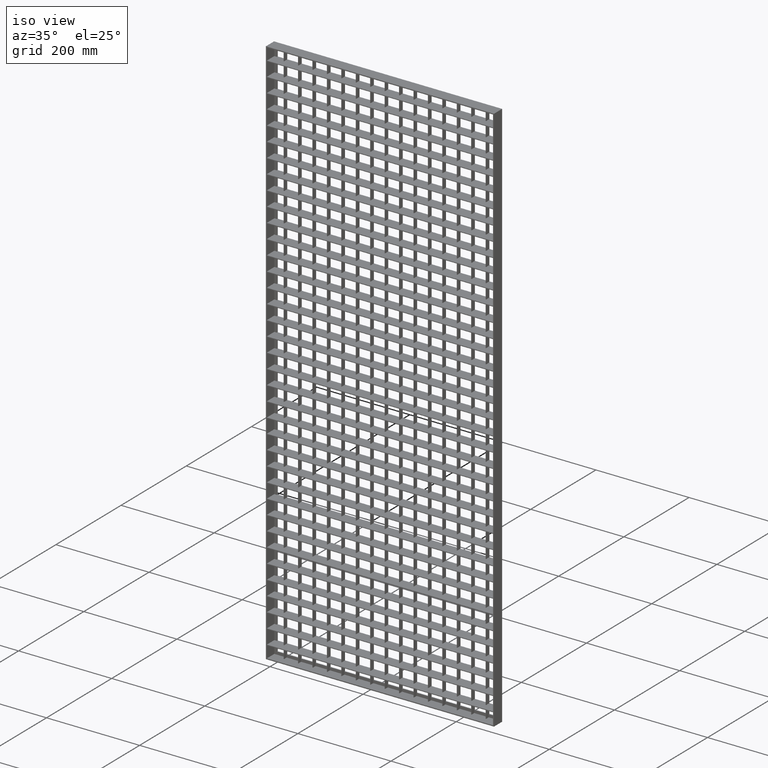
[diagram: clean part render]
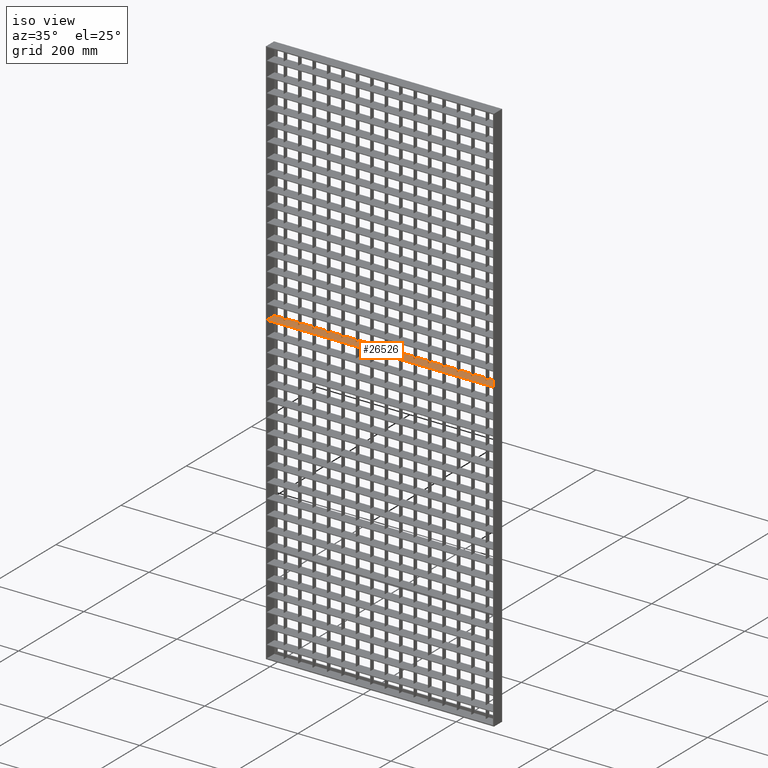
[diagram: same view with one face highlighted and labeled with its STEP entity id]
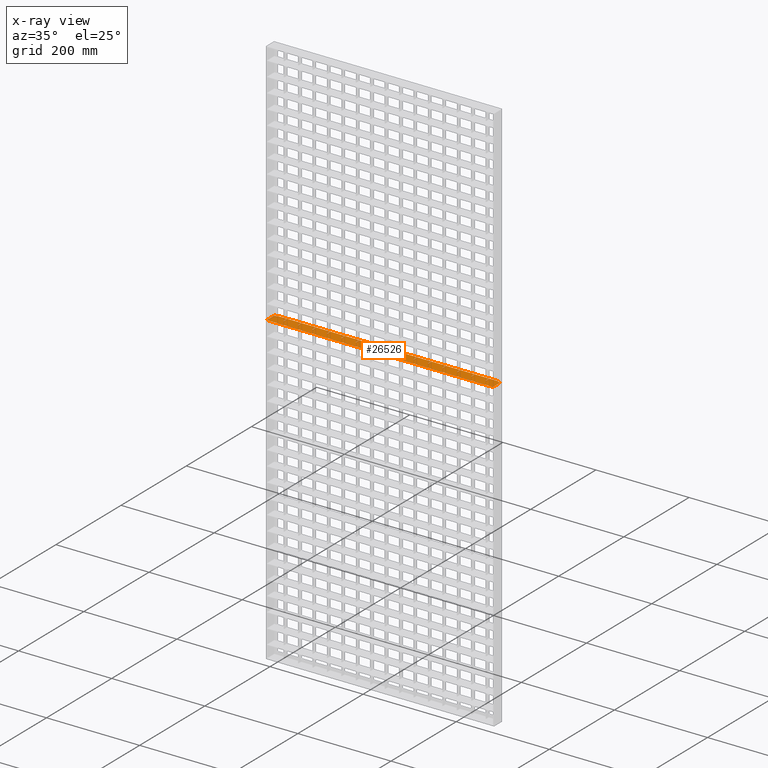
[diagram: x-ray of the same camera — body ghosted, the highlighted face saturated]
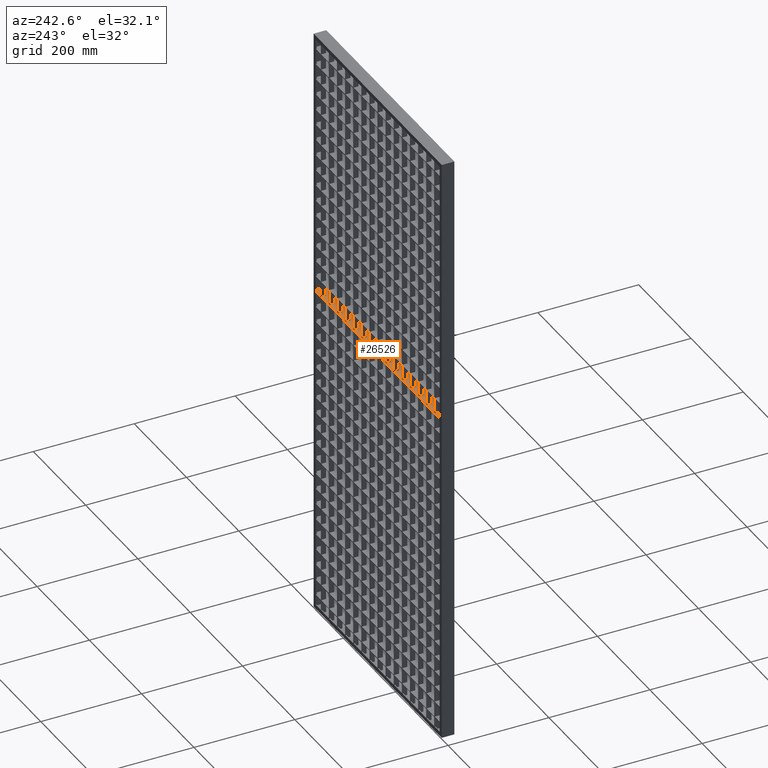
[diagram: same view with one face highlighted and labeled with its STEP entity id]
A machine part, iso view. The second image highlights one B-rep face of the part: STEP entity #26526.
The next image is the same camera in x-ray: the body ghosted, the highlighted face saturated — about 0% of this face is hidden behind the body in this view.
A second angle (auxiliary view) of the same face is appended — the face is thin or edge-on in the first view.
In plain terms, the highlighted planar face has unit normal (0, 0, 1).
Its self-contained STEP definition (entity closure, byte-faithful):
#17 = CARTESIAN_POINT ( 'NONE',  ( 244.5000000000000000, -12.49999999999984900, -531.2500000000002300 ) ) ;
#559 = ORIENTED_EDGE ( 'NONE', *, *, #63513, .T. ) ;
#852 = VERTEX_POINT ( 'NONE', #45681 ) ;
#919 = ORIENTED_EDGE ( 'NONE', *, *, #16611, .F. ) ;
#1181 = VECTOR ( 'NONE', #8940, 1000.000000000000000 ) ;
#1232 = VERTEX_POINT ( 'NONE', #42777 ) ;
#1347 = CARTESIAN_POINT ( 'NONE',  ( 90.50000000000002800, 2.500000000000000400, -531.2500000000002300 ) ) ;
#1612 = ORIENTED_EDGE ( 'NONE', *, *, #34572, .T. ) ;
#2037 = VERTEX_POINT ( 'NONE', #48611 ) ;
#2794 = CARTESIAN_POINT ( 'NONE',  ( 90.50000000000002800, -12.49999999999984900, -531.2500000000002300 ) ) ;
#2925 = VERTEX_POINT ( 'NONE', #67399 ) ;
#3530 = DIRECTION ( 'NONE',  ( -1.000000000000000000, -3.061616997868382200E-016, 0.0000000000000000000 ) ) ;
#3730 = VERTEX_POINT ( 'NONE', #35892 ) ;
#3938 = CARTESIAN_POINT ( 'NONE',  ( 482.0000000000002300, 12.50000000000000500, -531.2500000000002300 ) ) ;
#3950 = EDGE_CURVE ( 'NONE', #68654, #17824, #8129, .T. ) ;
#4154 = DIRECTION ( 'NONE',  ( -1.000000000000000000, 0.0000000000000000000, 0.0000000000000000000 ) ) ;
#4192 = CARTESIAN_POINT ( 'NONE',  ( 513.0449595727365000, 2.499999999999924100, -531.2500000000002300 ) ) ;
#4373 = EDGE_CURVE ( 'NONE', #21585, #8139, #80873, .T. ) ;
#4433 = LINE ( 'NONE', #71108, #7439 ) ;
#4519 = EDGE_CURVE ( 'NONE', #3730, #83474, #12798, .T. ) ;
#4557 = DIRECTION ( 'NONE',  ( -0.0000000000000000000, 1.000000000000000000, 0.0000000000000000000 ) ) ;
#4828 = CARTESIAN_POINT ( 'NONE',  ( 245.5000000000000000, 2.500000000000000400, -531.2500000000002300 ) ) ;
#4869 = EDGE_CURVE ( 'NONE', #28859, #1232, #47296, .T. ) ;
#5305 = VERTEX_POINT ( 'NONE', #33152 ) ;
#5413 = ORIENTED_EDGE ( 'NONE', *, *, #7295, .F. ) ;
#5796 = DIRECTION ( 'NONE',  ( -1.000000000000000000, 4.336808689942013800E-016, 0.0000000000000000000 ) ) ;
#5978 = LINE ( 'NONE', #73428, #20192 ) ;
#6105 = VECTOR ( 'NONE', #52221, 1000.000000000000000 ) ;
#6404 = DIRECTION ( 'NONE',  ( -1.000000000000000000, -3.061616997868382200E-016, 0.0000000000000000000 ) ) ;
#6513 = DIRECTION ( 'NONE',  ( 0.0000000000000000000, -1.000000000000000000, 0.0000000000000000000 ) ) ;
#6538 = CARTESIAN_POINT ( 'NONE',  ( 306.5000000000000000, 12.50000000000008900, -531.2500000000002300 ) ) ;
#6595 = EDGE_CURVE ( 'NONE', #58359, #56359, #74289, .T. ) ;
#6627 = VECTOR ( 'NONE', #3530, 1000.000000000000000 ) ;
#6730 = EDGE_CURVE ( 'NONE', #25553, #68654, #21547, .T. ) ;
#6926 = EDGE_CURVE ( 'NONE', #32621, #47350, #64201, .T. ) ;
#6965 = CARTESIAN_POINT ( 'NONE',  ( 121.5000000000000000, 12.50000000000003200, -531.2500000000002300 ) ) ;
#7295 = EDGE_CURVE ( 'NONE', #56359, #55517, #37768, .T. ) ;
#7439 = VECTOR ( 'NONE', #77902, 1000.000000000000000 ) ;
#7558 = CARTESIAN_POINT ( 'NONE',  ( 89.50000000000000000, 12.50000000000000000, -531.2500000000002300 ) ) ;
#7821 = LINE ( 'NONE', #67017, #20089 ) ;
#7890 = ORIENTED_EDGE ( 'NONE', *, *, #67189, .T. ) ;
#8035 = CARTESIAN_POINT ( 'NONE',  ( 7.999999999999994700, 12.50000000000000500, -531.2500000000002300 ) ) ;
#8129 = LINE ( 'NONE', #84101, #70115 ) ;
#8139 = VERTEX_POINT ( 'NONE', #43971 ) ;
#8196 = DIRECTION ( 'NONE',  ( -1.000000000000000000, -3.061616997868382200E-016, 0.0000000000000000000 ) ) ;
#8248 = CARTESIAN_POINT ( 'NONE',  ( 27.49999999999999600, 12.50000000000000000, -531.2500000000002300 ) ) ;
#8786 = ORIENTED_EDGE ( 'NONE', *, *, #6730, .T. ) ;
#8803 = CARTESIAN_POINT ( 'NONE',  ( 28.49999999999997200, -12.49999999999984900, -531.2500000000002300 ) ) ;
#8940 = DIRECTION ( 'NONE',  ( 1.000000000000000000, 4.336808689942013800E-016, -0.0000000000000000000 ) ) ;
#10178 = EDGE_CURVE ( 'NONE', #27710, #852, #27122, .T. ) ;
#10545 = VERTEX_POINT ( 'NONE', #70067 ) ;
#11007 = LINE ( 'NONE', #51637, #28438 ) ;
#11179 = EDGE_CURVE ( 'NONE', #55120, #3730, #50282, .T. ) ;
#11240 = VECTOR ( 'NONE', #21100, 1000.000000000000000 ) ;
#11317 = VECTOR ( 'NONE', #81990, 1000.000000000000000 ) ;
#11546 = DIRECTION ( 'NONE',  ( -1.000000000000000000, -3.061616997868382200E-016, 0.0000000000000000000 ) ) ;
#11763 = ORIENTED_EDGE ( 'NONE', *, *, #19971, .T. ) ;
#11916 = DIRECTION ( 'NONE',  ( -0.0000000000000000000, 1.000000000000000000, 0.0000000000000000000 ) ) ;
#12224 = DIRECTION ( 'NONE',  ( -0.0000000000000000000, 1.000000000000000000, 0.0000000000000000000 ) ) ;
#12508 = CARTESIAN_POINT ( 'NONE',  ( 59.50000000000000000, -12.49999999999984900, -531.2500000000002300 ) ) ;
#12632 = LINE ( 'NONE', #56739, #66483 ) ;
#12794 = VERTEX_POINT ( 'NONE', #53026 ) ;
#12798 = LINE ( 'NONE', #62057, #79820 ) ;
#12945 = EDGE_CURVE ( 'NONE', #21990, #41731, #22639, .T. ) ;
#13200 = ORIENTED_EDGE ( 'NONE', *, *, #12945, .T. ) ;
#13367 = ORIENTED_EDGE ( 'NONE', *, *, #15953, .T. ) ;
#13791 = VERTEX_POINT ( 'NONE', #48385 ) ;
#14016 = ORIENTED_EDGE ( 'NONE', *, *, #19840, .F. ) ;
#14093 = VECTOR ( 'NONE', #45635, 1000.000000000000000 ) ;
#14132 = DIRECTION ( 'NONE',  ( 0.0000000000000000000, -1.000000000000000000, 0.0000000000000000000 ) ) ;
#14478 = CARTESIAN_POINT ( 'NONE',  ( 275.5000000000000600, -12.49999999999984900, -531.2500000000002300 ) ) ;
#14565 = ORIENTED_EDGE ( 'NONE', *, *, #30578, .T. ) ;
#14609 = ORIENTED_EDGE ( 'NONE', *, *, #71657, .T. ) ;
#14885 = DIRECTION ( 'NONE',  ( 1.000000000000000000, 0.0000000000000000000, -0.0000000000000000000 ) ) ;
#14975 = EDGE_CURVE ( 'NONE', #21990, #21983, #60687, .T. ) ;
#15213 = LINE ( 'NONE', #15597, #33453 ) ;
#15276 = ORIENTED_EDGE ( 'NONE', *, *, #3950, .T. ) ;
#15446 = VECTOR ( 'NONE', #40828, 1000.000000000000000 ) ;
#15469 = VERTEX_POINT ( 'NONE', #16781 ) ;
#15489 = CARTESIAN_POINT ( 'NONE',  ( 488.0000000000001100, -12.50000000000000700, -531.2500000000002300 ) ) ;
#15597 = CARTESIAN_POINT ( 'NONE',  ( 513.0449595727365000, 12.50000000000015100, -531.2500000000002300 ) ) ;
#15863 = ORIENTED_EDGE ( 'NONE', *, *, #36326, .T. ) ;
#15901 = CARTESIAN_POINT ( 'NONE',  ( 482.0000000000001700, 10.50000000000036400, -531.2500000000002300 ) ) ;
#15928 = EDGE_CURVE ( 'NONE', #21983, #24872, #29488, .T. ) ;
#15953 = EDGE_CURVE ( 'NONE', #48015, #55120, #16308, .T. ) ;
#16012 = VECTOR ( 'NONE', #82881, 1000.000000000000000 ) ;
#16089 = CARTESIAN_POINT ( 'NONE',  ( 513.0449595727365000, 12.50000000000015100, -531.2500000000002300 ) ) ;
#16154 = CARTESIAN_POINT ( 'NONE',  ( 513.0449595727365000, 2.500000000000116800, -531.2500000000002300 ) ) ;
#16308 = LINE ( 'NONE', #41159, #75169 ) ;
#16611 = EDGE_CURVE ( 'NONE', #32721, #71116, #19269, .T. ) ;
#16678 = VECTOR ( 'NONE', #11546, 1000.000000000000000 ) ;
#16781 = CARTESIAN_POINT ( 'NONE',  ( 430.5000000000001100, 2.500000000000000900, -531.2500000000002300 ) ) ;
#17011 = ORIENTED_EDGE ( 'NONE', *, *, #76286, .T. ) ;
#17328 = AXIS2_PLACEMENT_3D ( 'NONE', #27691, #73075, #14885 ) ;
#17404 = VECTOR ( 'NONE', #70437, 1000.000000000000000 ) ;
#17552 = EDGE_CURVE ( 'NONE', #17824, #30678, #82034, .T. ) ;
#17672 = ORIENTED_EDGE ( 'NONE', *, *, #45824, .F. ) ;
#17824 = VERTEX_POINT ( 'NONE', #46170 ) ;
#17934 = LINE ( 'NONE', #56785, #19991 ) ;
#18040 = VECTOR ( 'NONE', #4557, 1000.000000000000000 ) ;
#18712 = LINE ( 'NONE', #43662, #16678 ) ;
#18740 = VERTEX_POINT ( 'NONE', #70092 ) ;
#18788 = CARTESIAN_POINT ( 'NONE',  ( 431.5000000000001100, 12.50000000000000000, -531.2500000000002300 ) ) ;
#19127 = CARTESIAN_POINT ( 'NONE',  ( 368.5000000000000600, 2.500000000000000900, -531.2500000000002300 ) ) ;
#19269 = LINE ( 'NONE', #64872, #23348 ) ;
#19352 = DIRECTION ( 'NONE',  ( -0.0000000000000000000, 1.000000000000000000, 0.0000000000000000000 ) ) ;
#19393 = ORIENTED_EDGE ( 'NONE', *, *, #77832, .F. ) ;
#19423 = CARTESIAN_POINT ( 'NONE',  ( 513.0449595727365000, 12.50000000000015100, -531.2500000000002300 ) ) ;
#19469 = LINE ( 'NONE', #54099, #1181 ) ;
#19782 = VECTOR ( 'NONE', #25803, 1000.000000000000000 ) ;
#19840 = EDGE_CURVE ( 'NONE', #55517, #852, #58258, .T. ) ;
#19957 = DIRECTION ( 'NONE',  ( 1.000000000000000000, 4.336808689942013800E-016, -0.0000000000000000000 ) ) ;
#19971 = EDGE_CURVE ( 'NONE', #30678, #23614, #83581, .T. ) ;
#19991 = VECTOR ( 'NONE', #31827, 1000.000000000000000 ) ;
#20089 = VECTOR ( 'NONE', #79516, 1000.000000000000000 ) ;
#20192 = VECTOR ( 'NONE', #61698, 1000.000000000000000 ) ;
#20293 = VECTOR ( 'NONE', #43402, 1000.000000000000000 ) ;
#20305 = ORIENTED_EDGE ( 'NONE', *, *, #23567, .F. ) ;
#20550 = VERTEX_POINT ( 'NONE', #50735 ) ;
#20802 = CARTESIAN_POINT ( 'NONE',  ( 337.5000000000000000, -12.49999999999984900, -531.2500000000002300 ) ) ;
#21020 = ORIENTED_EDGE ( 'NONE', *, *, #34104, .T. ) ;
#21044 = CARTESIAN_POINT ( 'NONE',  ( 58.50000000000000000, -12.49999999999984900, -531.2500000000002300 ) ) ;
#21100 = DIRECTION ( 'NONE',  ( 0.0000000000000000000, -1.000000000000000000, 0.0000000000000000000 ) ) ;
#21398 = ORIENTED_EDGE ( 'NONE', *, *, #14975, .F. ) ;
#21547 = LINE ( 'NONE', #15901, #11317 ) ;
#21585 = VERTEX_POINT ( 'NONE', #70326 ) ;
#21801 = EDGE_CURVE ( 'NONE', #81475, #53128, #64379, .T. ) ;
#21983 = VERTEX_POINT ( 'NONE', #22623 ) ;
#21990 = VERTEX_POINT ( 'NONE', #67985 ) ;
#21995 = ORIENTED_EDGE ( 'NONE', *, *, #4519, .T. ) ;
#22163 = EDGE_CURVE ( 'NONE', #83878, #5305, #30817, .T. ) ;
#22542 = ORIENTED_EDGE ( 'NONE', *, *, #40604, .F. ) ;
#22623 = CARTESIAN_POINT ( 'NONE',  ( 151.4999999999999700, 2.499999999999999600, -531.2500000000002300 ) ) ;
#22626 = ORIENTED_EDGE ( 'NONE', *, *, #66782, .F. ) ;
#22639 = LINE ( 'NONE', #16089, #53086 ) ;
#22795 = VECTOR ( 'NONE', #36539, 1000.000000000000000 ) ;
#23348 = VECTOR ( 'NONE', #71426, 1000.000000000000000 ) ;
#23364 = LINE ( 'NONE', #20802, #74071 ) ;
#23383 = VECTOR ( 'NONE', #8196, 1000.000000000000000 ) ;
#23567 = EDGE_CURVE ( 'NONE', #72979, #52291, #47796, .T. ) ;
#23607 = VECTOR ( 'NONE', #49642, 1000.000000000000000 ) ;
#23614 = VERTEX_POINT ( 'NONE', #32705 ) ;
#23872 = EDGE_CURVE ( 'NONE', #8139, #56654, #35561, .T. ) ;
#24226 = VECTOR ( 'NONE', #19352, 1000.000000000000000 ) ;
#24248 = VERTEX_POINT ( 'NONE', #52911 ) ;
#24436 = VECTOR ( 'NONE', #26189, 1000.000000000000000 ) ;
#24726 = VECTOR ( 'NONE', #12224, 1000.000000000000000 ) ;
#24851 = VECTOR ( 'NONE', #41116, 1000.000000000000000 ) ;
#24872 = VERTEX_POINT ( 'NONE', #40089 ) ;
#25437 = LINE ( 'NONE', #39220, #23383 ) ;
#25504 = LINE ( 'NONE', #35752, #75203 ) ;
#25509 = ORIENTED_EDGE ( 'NONE', *, *, #30991, .T. ) ;
#25553 = VERTEX_POINT ( 'NONE', #38291 ) ;
#25712 = LINE ( 'NONE', #63280, #56128 ) ;
#25723 = LINE ( 'NONE', #82875, #65244 ) ;
#25803 = DIRECTION ( 'NONE',  ( 0.0000000000000000000, -1.000000000000000000, 0.0000000000000000000 ) ) ;
#25852 = DIRECTION ( 'NONE',  ( -1.000000000000000000, -3.061616997868382200E-016, 0.0000000000000000000 ) ) ;
#26154 = CARTESIAN_POINT ( 'NONE',  ( 120.5000000000000000, 2.500000000000000000, -531.2500000000002300 ) ) ;
#26189 = DIRECTION ( 'NONE',  ( 0.0000000000000000000, -1.000000000000000000, 0.0000000000000000000 ) ) ;
#26259 = CARTESIAN_POINT ( 'NONE',  ( 513.0449595727365000, 12.50000000000015100, -531.2500000000002300 ) ) ;
#26341 = CARTESIAN_POINT ( 'NONE',  ( 513.0449595727365000, 12.50000000000015100, -531.2500000000002300 ) ) ;
#26361 = ORIENTED_EDGE ( 'NONE', *, *, #36196, .T. ) ;
#26494 = CARTESIAN_POINT ( 'NONE',  ( 513.0449595727365000, 2.500000000000170500, -531.2500000000002300 ) ) ;
#26513 = ORIENTED_EDGE ( 'NONE', *, *, #4373, .T. ) ;
#26526 = ADVANCED_FACE ( 'NONE', ( #30831 ), #28241, .T. ) ;
#26799 = DIRECTION ( 'NONE',  ( -0.0000000000000000000, 1.000000000000000000, 0.0000000000000000000 ) ) ;
#27122 = LINE ( 'NONE', #19423, #61560 ) ;
#27366 = CARTESIAN_POINT ( 'NONE',  ( 89.50000000000002800, -12.49999999999984900, -531.2500000000002300 ) ) ;
#27691 = CARTESIAN_POINT ( 'NONE',  ( 513.0449595727365000, -12.49999999999984900, -531.2500000000002300 ) ) ;
#27710 = VERTEX_POINT ( 'NONE', #7558 ) ;
#27762 = EDGE_CURVE ( 'NONE', #57941, #81475, #64248, .T. ) ;
#27951 = LINE ( 'NONE', #45646, #19782 ) ;
#28043 = DIRECTION ( 'NONE',  ( -1.000000000000000000, -3.061616997868382200E-016, 0.0000000000000000000 ) ) ;
#28099 = DIRECTION ( 'NONE',  ( -8.673617379884035500E-016, -1.000000000000000000, 0.0000000000000000000 ) ) ;
#28241 = PLANE ( 'NONE',  #17328 ) ;
#28263 = LINE ( 'NONE', #58470, #57616 ) ;
#28359 = ORIENTED_EDGE ( 'NONE', *, *, #63151, .T. ) ;
#28438 = VECTOR ( 'NONE', #25852, 1000.000000000000000 ) ;
#28594 = ORIENTED_EDGE ( 'NONE', *, *, #15928, .F. ) ;
#28694 = CARTESIAN_POINT ( 'NONE',  ( 513.0449595727365000, 12.50000000000015100, -531.2500000000002300 ) ) ;
#28859 = VERTEX_POINT ( 'NONE', #82130 ) ;
#28905 = LINE ( 'NONE', #49310, #22795 ) ;
#29488 = LINE ( 'NONE', #40054, #6105 ) ;
#30008 = DIRECTION ( 'NONE',  ( -1.000000000000000000, 4.336808689942013800E-016, 0.0000000000000000000 ) ) ;
#30449 = VECTOR ( 'NONE', #31212, 1000.000000000000000 ) ;
#30578 = EDGE_CURVE ( 'NONE', #2037, #15469, #17934, .T. ) ;
#30593 = EDGE_CURVE ( 'NONE', #58951, #41731, #78803, .T. ) ;
#30678 = VERTEX_POINT ( 'NONE', #45739 ) ;
#30711 = ORIENTED_EDGE ( 'NONE', *, *, #44966, .F. ) ;
#30817 = LINE ( 'NONE', #50950, #37952 ) ;
#30831 = FACE_OUTER_BOUND ( 'NONE', #32260, .T. ) ;
#30991 = EDGE_CURVE ( 'NONE', #72979, #50753, #18712, .T. ) ;
#31212 = DIRECTION ( 'NONE',  ( 1.000000000000000000, 4.336808689942013800E-016, -0.0000000000000000000 ) ) ;
#31355 = LINE ( 'NONE', #65746, #14093 ) ;
#31604 = CARTESIAN_POINT ( 'NONE',  ( 58.49999999999994300, 2.499999999999999100, -531.2500000000002300 ) ) ;
#31827 = DIRECTION ( 'NONE',  ( -1.000000000000000000, 4.336808689942013800E-016, 0.0000000000000000000 ) ) ;
#31969 = CARTESIAN_POINT ( 'NONE',  ( 89.49999999999997200, 2.500000000000000400, -531.2500000000002300 ) ) ;
#32260 = EDGE_LOOP ( 'NONE', ( #15276, #59120, #11763, #45192, #56227, #21020, #14565, #56655, #26361, #28359, #68705, #80514, #41710, #67503, #50808, #77247, #17011, #57095, #44488, #43430, #42456, #7890, #15863, #559, #79391, #67338, #34106, #26513, #80723, #49895, #45200, #20305, #25509, #22542, #54948, #70255, #1612, #62187, #30711, #80187, #66073, #17672, #28594, #21398, #13200, #76352, #19393, #72598, #49957, #22626, #80289, #48728, #40156, #14016, #5413, #82104, #70359, #51029, #72747, #45619, #65869, #13367, #63148, #21995, #35299, #919, #14609, #8786 ) ) ;
#32429 = VECTOR ( 'NONE', #70585, 1000.000000000000000 ) ;
#32621 = VERTEX_POINT ( 'NONE', #31969 ) ;
#32705 = CARTESIAN_POINT ( 'NONE',  ( 461.5000000000000000, 2.500000000000000900, -531.2500000000002300 ) ) ;
#32721 = VERTEX_POINT ( 'NONE', #64853 ) ;
#32807 = VECTOR ( 'NONE', #80030, 1000.000000000000000 ) ;
#32920 = VERTEX_POINT ( 'NONE', #79589 ) ;
#33045 = VECTOR ( 'NONE', #4154, 1000.000000000000000 ) ;
#33058 = LINE ( 'NONE', #62811, #72718 ) ;
#33152 = CARTESIAN_POINT ( 'NONE',  ( 399.5000000000000600, 2.500000000000000900, -531.2500000000002300 ) ) ;
#33186 = VECTOR ( 'NONE', #59877, 1000.000000000000000 ) ;
#33430 = LINE ( 'NONE', #33921, #72023 ) ;
#33453 = VECTOR ( 'NONE', #43118, 1000.000000000000000 ) ;
#33921 = CARTESIAN_POINT ( 'NONE',  ( 513.0449595727365000, 12.50000000000015100, -531.2500000000002300 ) ) ;
#34026 = CARTESIAN_POINT ( 'NONE',  ( 151.4999999999999700, -12.49999999999984900, -531.2500000000002300 ) ) ;
#34104 = EDGE_CURVE ( 'NONE', #75950, #2037, #54715, .T. ) ;
#34106 = ORIENTED_EDGE ( 'NONE', *, *, #41093, .T. ) ;
#34572 = EDGE_CURVE ( 'NONE', #28859, #24248, #71334, .T. ) ;
#34614 = CARTESIAN_POINT ( 'NONE',  ( 27.49999999999996800, 2.499999999999999600, -531.2500000000002300 ) ) ;
#35299 = ORIENTED_EDGE ( 'NONE', *, *, #67406, .F. ) ;
#35561 = LINE ( 'NONE', #28694, #43826 ) ;
#35752 = CARTESIAN_POINT ( 'NONE',  ( 306.5000000000000000, -12.49999999999984900, -531.2500000000002300 ) ) ;
#35769 = CARTESIAN_POINT ( 'NONE',  ( 337.5000000000000000, 2.500000000000000900, -531.2500000000002300 ) ) ;
#35892 = CARTESIAN_POINT ( 'NONE',  ( 2.000000000000002700, 10.50000000000000500, -531.2500000000002300 ) ) ;
#36000 = DIRECTION ( 'NONE',  ( -0.0000000000000000000, -1.000000000000000000, 0.0000000000000000000 ) ) ;
#36196 = EDGE_CURVE ( 'NONE', #62348, #74342, #48279, .T. ) ;
#36326 = EDGE_CURVE ( 'NONE', #60815, #18740, #33058, .T. ) ;
#36529 = CARTESIAN_POINT ( 'NONE',  ( 430.5000000000001100, 12.50000000000012600, -531.2500000000002300 ) ) ;
#36539 = DIRECTION ( 'NONE',  ( -1.000000000000000000, -3.061616997868382200E-016, 0.0000000000000000000 ) ) ;
#36671 = VECTOR ( 'NONE', #68597, 1000.000000000000000 ) ;
#37161 = LINE ( 'NONE', #26494, #43299 ) ;
#37173 = VERTEX_POINT ( 'NONE', #58195 ) ;
#37592 = CARTESIAN_POINT ( 'NONE',  ( 400.5000000000000600, 2.500000000000000400, -531.2500000000002300 ) ) ;
#37677 = EDGE_CURVE ( 'NONE', #69508, #37173, #25723, .T. ) ;
#37768 = LINE ( 'NONE', #53834, #15446 ) ;
#37952 = VECTOR ( 'NONE', #5796, 1000.000000000000000 ) ;
#38056 = VERTEX_POINT ( 'NONE', #61219 ) ;
#38061 = DIRECTION ( 'NONE',  ( 0.0000000000000000000, -1.000000000000000000, 0.0000000000000000000 ) ) ;
#38291 = CARTESIAN_POINT ( 'NONE',  ( 482.0000000000001700, 10.50000000000000500, -531.2500000000002300 ) ) ;
#39169 = EDGE_CURVE ( 'NONE', #27710, #32621, #81298, .T. ) ;
#39203 = DIRECTION ( 'NONE',  ( -0.0000000000000000000, 1.000000000000000000, 0.0000000000000000000 ) ) ;
#39220 = CARTESIAN_POINT ( 'NONE',  ( 513.0449595727365000, 12.50000000000015100, -531.2500000000002300 ) ) ;
#39366 = DIRECTION ( 'NONE',  ( -0.0000000000000000000, 1.000000000000000000, 0.0000000000000000000 ) ) ;
#40054 = CARTESIAN_POINT ( 'NONE',  ( 513.0449595727365000, 2.500000000000156800, -531.2500000000002300 ) ) ;
#40089 = CARTESIAN_POINT ( 'NONE',  ( 152.4999999999999700, 2.500000000000000400, -531.2500000000002300 ) ) ;
#40156 = ORIENTED_EDGE ( 'NONE', *, *, #10178, .T. ) ;
#40604 = EDGE_CURVE ( 'NONE', #51027, #50753, #66999, .T. ) ;
#40669 = CARTESIAN_POINT ( 'NONE',  ( 152.5000000000000300, 12.50000000000004100, -531.2500000000002300 ) ) ;
#40828 = DIRECTION ( 'NONE',  ( 1.000000000000000000, 4.336808689942013800E-016, -0.0000000000000000000 ) ) ;
#40923 = CARTESIAN_POINT ( 'NONE',  ( 213.5000000000000300, -12.49999999999984900, -531.2500000000002300 ) ) ;
#40933 = VERTEX_POINT ( 'NONE', #4828 ) ;
#41093 = EDGE_CURVE ( 'NONE', #37173, #21585, #41646, .T. ) ;
#41116 = DIRECTION ( 'NONE',  ( 0.0000000000000000000, -1.000000000000000000, 0.0000000000000000000 ) ) ;
#41159 = CARTESIAN_POINT ( 'NONE',  ( 7.999999999999992900, 10.50000000000000500, -531.2500000000002300 ) ) ;
#41237 = DIRECTION ( 'NONE',  ( -0.0000000000000000000, 1.000000000000000000, 0.0000000000000000000 ) ) ;
#41364 = EDGE_CURVE ( 'NONE', #2925, #46596, #15213, .T. ) ;
#41463 = LINE ( 'NONE', #77461, #16012 ) ;
#41646 = LINE ( 'NONE', #64992, #84290 ) ;
#41710 = ORIENTED_EDGE ( 'NONE', *, *, #27762, .T. ) ;
#41731 = VERTEX_POINT ( 'NONE', #6965 ) ;
#41934 = CARTESIAN_POINT ( 'NONE',  ( 369.5000000000000600, -12.49999999999984900, -531.2500000000002300 ) ) ;
#42086 = EDGE_CURVE ( 'NONE', #1232, #51027, #41463, .T. ) ;
#42101 = CARTESIAN_POINT ( 'NONE',  ( 214.5000000000000300, -12.49999999999984900, -531.2500000000002300 ) ) ;
#42222 = EDGE_CURVE ( 'NONE', #77989, #55348, #28263, .T. ) ;
#42275 = VECTOR ( 'NONE', #11916, 1000.000000000000000 ) ;
#42364 = CARTESIAN_POINT ( 'NONE',  ( 399.5000000000000600, 12.50000000000011700, -531.2500000000002300 ) ) ;
#42456 = ORIENTED_EDGE ( 'NONE', *, *, #83458, .T. ) ;
#42714 = EDGE_CURVE ( 'NONE', #82819, #69508, #59607, .T. ) ;
#42777 = CARTESIAN_POINT ( 'NONE',  ( 213.4999999999999700, 2.500000000000000400, -531.2500000000002300 ) ) ;
#43118 = DIRECTION ( 'NONE',  ( -1.000000000000000000, -3.061616997868382200E-016, 0.0000000000000000000 ) ) ;
#43299 = VECTOR ( 'NONE', #19957, 1000.000000000000000 ) ;
#43402 = DIRECTION ( 'NONE',  ( -1.000000000000000000, 4.336808689942013800E-016, 0.0000000000000000000 ) ) ;
#43430 = ORIENTED_EDGE ( 'NONE', *, *, #48404, .T. ) ;
#43662 = CARTESIAN_POINT ( 'NONE',  ( 513.0449595727365000, 12.50000000000015100, -531.2500000000002300 ) ) ;
#43826 = VECTOR ( 'NONE', #49096, 1000.000000000000000 ) ;
#43971 = CARTESIAN_POINT ( 'NONE',  ( 275.5000000000000600, 12.50000000000007800, -531.2500000000002300 ) ) ;
#44230 = CARTESIAN_POINT ( 'NONE',  ( 58.50000000000000000, 12.50000000000000000, -531.2500000000002300 ) ) ;
#44273 = VERTEX_POINT ( 'NONE', #78712 ) ;
#44488 = ORIENTED_EDGE ( 'NONE', *, *, #83187, .T. ) ;
#44776 = EDGE_CURVE ( 'NONE', #58359, #65981, #65204, .T. ) ;
#44882 = LINE ( 'NONE', #57101, #50958 ) ;
#44966 = EDGE_CURVE ( 'NONE', #44273, #32920, #19469, .T. ) ;
#45192 = ORIENTED_EDGE ( 'NONE', *, *, #58041, .T. ) ;
#45200 = ORIENTED_EDGE ( 'NONE', *, *, #66909, .F. ) ;
#45528 = DIRECTION ( 'NONE',  ( -1.000000000000000000, -3.061616997868382200E-016, 0.0000000000000000000 ) ) ;
#45619 = ORIENTED_EDGE ( 'NONE', *, *, #42222, .F. ) ;
#45635 = DIRECTION ( 'NONE',  ( -1.000000000000000000, -3.061616997868382200E-016, 0.0000000000000000000 ) ) ;
#45646 = CARTESIAN_POINT ( 'NONE',  ( 307.5000000000000000, -12.49999999999984900, -531.2500000000002300 ) ) ;
#45681 = CARTESIAN_POINT ( 'NONE',  ( 59.50000000000005000, 12.50000000000001200, -531.2500000000002300 ) ) ;
#45739 = CARTESIAN_POINT ( 'NONE',  ( 462.5000000000000000, 2.500000000000000400, -531.2500000000002300 ) ) ;
#45824 = EDGE_CURVE ( 'NONE', #24872, #46596, #75926, .T. ) ;
#45956 = VECTOR ( 'NONE', #65389, 1000.000000000000000 ) ;
#46170 = CARTESIAN_POINT ( 'NONE',  ( 462.5000000000000000, 12.50000000000000000, -531.2500000000002300 ) ) ;
#46596 = VERTEX_POINT ( 'NONE', #40669 ) ;
#47094 = DIRECTION ( 'NONE',  ( 0.0000000000000000000, -1.000000000000000000, 0.0000000000000000000 ) ) ;
#47296 = LINE ( 'NONE', #40923, #69567 ) ;
#47350 = VERTEX_POINT ( 'NONE', #1347 ) ;
#47796 = LINE ( 'NONE', #17, #24436 ) ;
#47889 = DIRECTION ( 'NONE',  ( -1.000000000000000000, -3.061616997868382200E-016, 0.0000000000000000000 ) ) ;
#48015 = VERTEX_POINT ( 'NONE', #8035 ) ;
#48279 = LINE ( 'NONE', #75328, #6627 ) ;
#48385 = CARTESIAN_POINT ( 'NONE',  ( 338.5000000000000000, 2.500000000000000400, -531.2500000000002300 ) ) ;
#48404 = EDGE_CURVE ( 'NONE', #72982, #48824, #23364, .T. ) ;
#48442 = CARTESIAN_POINT ( 'NONE',  ( 513.0449595727365000, 12.50000000000015100, -531.2500000000002300 ) ) ;
#48562 = CARTESIAN_POINT ( 'NONE',  ( 244.5000000000000000, 12.50000000000000000, -531.2500000000002300 ) ) ;
#48611 = CARTESIAN_POINT ( 'NONE',  ( 431.5000000000001100, 2.500000000000000400, -531.2500000000002300 ) ) ;
#48703 = LINE ( 'NONE', #76812, #32429 ) ;
#48728 = ORIENTED_EDGE ( 'NONE', *, *, #39169, .F. ) ;
#48824 = VERTEX_POINT ( 'NONE', #82591 ) ;
#48916 = EDGE_CURVE ( 'NONE', #38056, #75950, #11007, .T. ) ;
#49096 = DIRECTION ( 'NONE',  ( -1.000000000000000000, -3.061616997868382200E-016, 0.0000000000000000000 ) ) ;
#49310 = CARTESIAN_POINT ( 'NONE',  ( 513.0449595727365000, -12.49999999999984900, -531.2500000000002300 ) ) ;
#49642 = DIRECTION ( 'NONE',  ( 1.000000000000000000, 4.336808689942013800E-016, -0.0000000000000000000 ) ) ;
#49852 = LINE ( 'NONE', #58216, #24226 ) ;
#49895 = ORIENTED_EDGE ( 'NONE', *, *, #65567, .F. ) ;
#49957 = ORIENTED_EDGE ( 'NONE', *, *, #82833, .T. ) ;
#50174 = CARTESIAN_POINT ( 'NONE',  ( 307.5000000000000000, 12.50000000000000000, -531.2500000000002300 ) ) ;
#50257 = DIRECTION ( 'NONE',  ( -0.0000000000000000000, 1.000000000000000000, 0.0000000000000000000 ) ) ;
#50282 = LINE ( 'NONE', #62319, #33045 ) ;
#50735 = CARTESIAN_POINT ( 'NONE',  ( 338.5000000000000000, 12.50000000000000000, -531.2500000000002300 ) ) ;
#50753 = VERTEX_POINT ( 'NONE', #59046 ) ;
#50808 = ORIENTED_EDGE ( 'NONE', *, *, #70529, .T. ) ;
#50950 = CARTESIAN_POINT ( 'NONE',  ( 513.0449595727365000, 2.499999999999952000, -531.2500000000002300 ) ) ;
#50958 = VECTOR ( 'NONE', #69314, 1000.000000000000000 ) ;
#51027 = VERTEX_POINT ( 'NONE', #61773 ) ;
#51029 = ORIENTED_EDGE ( 'NONE', *, *, #72797, .F. ) ;
#51087 = DIRECTION ( 'NONE',  ( 0.0000000000000000000, -1.000000000000000000, 0.0000000000000000000 ) ) ;
#51453 = VECTOR ( 'NONE', #6404, 1000.000000000000000 ) ;
#51591 = VECTOR ( 'NONE', #82020, 1000.000000000000000 ) ;
#51637 = CARTESIAN_POINT ( 'NONE',  ( 513.0449595727365000, 12.50000000000015100, -531.2500000000002300 ) ) ;
#51671 = DIRECTION ( 'NONE',  ( -1.000000000000000000, 4.336808689942013800E-016, 0.0000000000000000000 ) ) ;
#52090 = DIRECTION ( 'NONE',  ( -1.000000000000000000, -3.061616997868382200E-016, 0.0000000000000000000 ) ) ;
#52221 = DIRECTION ( 'NONE',  ( 1.000000000000000000, 4.336808689942013800E-016, -0.0000000000000000000 ) ) ;
#52291 = VERTEX_POINT ( 'NONE', #81633 ) ;
#52580 = LINE ( 'NONE', #58772, #84089 ) ;
#52700 = CARTESIAN_POINT ( 'NONE',  ( 2.000000000000001800, -12.50000000000000500, -531.2500000000002300 ) ) ;
#52911 = CARTESIAN_POINT ( 'NONE',  ( 183.5000000000000600, 12.50000000000005200, -531.2500000000002300 ) ) ;
#53026 = CARTESIAN_POINT ( 'NONE',  ( 28.49999999999997200, 2.500000000000000400, -531.2500000000002300 ) ) ;
#53046 = CARTESIAN_POINT ( 'NONE',  ( 368.5000000000000600, 12.50000000000010700, -531.2500000000002300 ) ) ;
#53086 = VECTOR ( 'NONE', #47889, 1000.000000000000000 ) ;
#53128 = VERTEX_POINT ( 'NONE', #72371 ) ;
#53353 = VECTOR ( 'NONE', #41237, 1000.000000000000000 ) ;
#53392 = LINE ( 'NONE', #16154, #83855 ) ;
#53671 = VECTOR ( 'NONE', #14132, 1000.000000000000000 ) ;
#53738 = EDGE_CURVE ( 'NONE', #15469, #62348, #72814, .T. ) ;
#53834 = CARTESIAN_POINT ( 'NONE',  ( 513.0449595727365000, 2.500000000000196300, -531.2500000000002300 ) ) ;
#54082 = VECTOR ( 'NONE', #28043, 1000.000000000000000 ) ;
#54099 = CARTESIAN_POINT ( 'NONE',  ( 513.0449595727365000, 2.500000000000142600, -531.2500000000002300 ) ) ;
#54715 = LINE ( 'NONE', #72332, #53671 ) ;
#54754 = DIRECTION ( 'NONE',  ( -0.0000000000000000000, 1.000000000000000000, 0.0000000000000000000 ) ) ;
#54808 = LINE ( 'NONE', #56217, #30449 ) ;
#54948 = ORIENTED_EDGE ( 'NONE', *, *, #42086, .F. ) ;
#55120 = VERTEX_POINT ( 'NONE', #58728 ) ;
#55348 = VERTEX_POINT ( 'NONE', #34614 ) ;
#55517 = VERTEX_POINT ( 'NONE', #60954 ) ;
#55666 = CARTESIAN_POINT ( 'NONE',  ( 152.4999999999999700, -12.49999999999984900, -531.2500000000002300 ) ) ;
#56090 = VECTOR ( 'NONE', #78522, 1000.000000000000000 ) ;
#56128 = VECTOR ( 'NONE', #50257, 1000.000000000000000 ) ;
#56217 = CARTESIAN_POINT ( 'NONE',  ( 513.0449595727365000, 2.500000000000210500, -531.2500000000002300 ) ) ;
#56227 = ORIENTED_EDGE ( 'NONE', *, *, #48916, .T. ) ;
#56359 = VERTEX_POINT ( 'NONE', #31604 ) ;
#56654 = VERTEX_POINT ( 'NONE', #79788 ) ;
#56655 = ORIENTED_EDGE ( 'NONE', *, *, #53738, .T. ) ;
#56739 = CARTESIAN_POINT ( 'NONE',  ( 338.5000000000000000, -12.49999999999984900, -531.2500000000002300 ) ) ;
#56785 = CARTESIAN_POINT ( 'NONE',  ( 513.0449595727365000, 2.499999999999964000, -531.2500000000002300 ) ) ;
#56878 = DIRECTION ( 'NONE',  ( -1.000000000000000000, 4.336808689942013800E-016, 0.0000000000000000000 ) ) ;
#57095 = ORIENTED_EDGE ( 'NONE', *, *, #61771, .T. ) ;
#57101 = CARTESIAN_POINT ( 'NONE',  ( 120.5000000000000000, -12.49999999999984900, -531.2500000000002300 ) ) ;
#57616 = VECTOR ( 'NONE', #6513, 1000.000000000000000 ) ;
#57941 = VERTEX_POINT ( 'NONE', #42364 ) ;
#58041 = EDGE_CURVE ( 'NONE', #23614, #38056, #25712, .T. ) ;
#58195 = CARTESIAN_POINT ( 'NONE',  ( 276.5000000000000600, 2.500000000000000400, -531.2500000000002300 ) ) ;
#58216 = CARTESIAN_POINT ( 'NONE',  ( 183.5000000000000000, -12.49999999999984900, -531.2500000000002300 ) ) ;
#58258 = LINE ( 'NONE', #12508, #24726 ) ;
#58359 = VERTEX_POINT ( 'NONE', #44230 ) ;
#58470 = CARTESIAN_POINT ( 'NONE',  ( 27.49999999999996800, -12.49999999999984900, -531.2500000000002300 ) ) ;
#58728 = CARTESIAN_POINT ( 'NONE',  ( 7.999999999999992900, 10.50000000000000500, -531.2500000000002300 ) ) ;
#58772 = CARTESIAN_POINT ( 'NONE',  ( 245.5000000000000000, -12.49999999999984900, -531.2500000000002300 ) ) ;
#58951 = VERTEX_POINT ( 'NONE', #70744 ) ;
#59046 = CARTESIAN_POINT ( 'NONE',  ( 214.5000000000000300, 12.50000000000006000, -531.2500000000002300 ) ) ;
#59120 = ORIENTED_EDGE ( 'NONE', *, *, #17552, .T. ) ;
#59475 = EDGE_CURVE ( 'NONE', #55348, #12794, #54808, .T. ) ;
#59607 = LINE ( 'NONE', #64593, #51453 ) ;
#59877 = DIRECTION ( 'NONE',  ( -0.0000000000000000000, 1.000000000000000000, 0.0000000000000000000 ) ) ;
#60687 = LINE ( 'NONE', #34026, #71866 ) ;
#60815 = VERTEX_POINT ( 'NONE', #79150 ) ;
#60872 = VECTOR ( 'NONE', #80102, 1000.000000000000000 ) ;
#60954 = CARTESIAN_POINT ( 'NONE',  ( 59.50000000000000000, 2.500000000000000400, -531.2500000000002300 ) ) ;
#61219 = CARTESIAN_POINT ( 'NONE',  ( 461.5000000000000000, 12.50000000000013700, -531.2500000000002300 ) ) ;
#61518 = DIRECTION ( 'NONE',  ( 1.000000000000000000, 4.336808689942013800E-016, -0.0000000000000000000 ) ) ;
#61560 = VECTOR ( 'NONE', #45528, 1000.000000000000000 ) ;
#61698 = DIRECTION ( 'NONE',  ( 0.0000000000000000000, -1.000000000000000000, 0.0000000000000000000 ) ) ;
#61771 = EDGE_CURVE ( 'NONE', #20550, #13791, #12632, .T. ) ;
#61773 = CARTESIAN_POINT ( 'NONE',  ( 214.5000000000000300, 2.500000000000000400, -531.2500000000002300 ) ) ;
#62057 = CARTESIAN_POINT ( 'NONE',  ( 2.000000000000002700, -12.50000000000000000, -531.2500000000002300 ) ) ;
#62187 = ORIENTED_EDGE ( 'NONE', *, *, #79803, .F. ) ;
#62319 = CARTESIAN_POINT ( 'NONE',  ( 2.000000000000002700, 10.50000000000000500, -531.2500000000002300 ) ) ;
#62348 = VERTEX_POINT ( 'NONE', #36529 ) ;
#62811 = CARTESIAN_POINT ( 'NONE',  ( 513.0449595727365000, 2.499999999999910300, -531.2500000000002300 ) ) ;
#63030 = EDGE_CURVE ( 'NONE', #10545, #65644, #44882, .T. ) ;
#63148 = ORIENTED_EDGE ( 'NONE', *, *, #11179, .T. ) ;
#63151 = EDGE_CURVE ( 'NONE', #74342, #83878, #65196, .T. ) ;
#63280 = CARTESIAN_POINT ( 'NONE',  ( 461.5000000000000000, -12.49999999999984900, -531.2500000000002300 ) ) ;
#63297 = CARTESIAN_POINT ( 'NONE',  ( 121.5000000000000000, -12.49999999999984900, -531.2500000000002300 ) ) ;
#63513 = EDGE_CURVE ( 'NONE', #18740, #82819, #25504, .T. ) ;
#64201 = LINE ( 'NONE', #82555, #23607 ) ;
#64248 = LINE ( 'NONE', #48442, #54082 ) ;
#64379 = LINE ( 'NONE', #41934, #24851 ) ;
#64426 = EDGE_CURVE ( 'NONE', #2925, #44273, #5978, .T. ) ;
#64593 = CARTESIAN_POINT ( 'NONE',  ( 513.0449595727365000, 12.50000000000015100, -531.2500000000002300 ) ) ;
#64853 = CARTESIAN_POINT ( 'NONE',  ( 488.0000000000002300, 10.50000000000000500, -531.2500000000002300 ) ) ;
#64872 = CARTESIAN_POINT ( 'NONE',  ( 488.0000000000001100, -12.49999999999984900, -531.2500000000002300 ) ) ;
#64992 = CARTESIAN_POINT ( 'NONE',  ( 513.0449595727365000, 2.499999999999898300, -531.2500000000002300 ) ) ;
#65196 = LINE ( 'NONE', #76945, #17404 ) ;
#65204 = LINE ( 'NONE', #26341, #56090 ) ;
#65244 = VECTOR ( 'NONE', #38061, 1000.000000000000000 ) ;
#65389 = DIRECTION ( 'NONE',  ( -1.000000000000000000, -3.061616997868382200E-016, 0.0000000000000000000 ) ) ;
#65567 = EDGE_CURVE ( 'NONE', #40933, #56654, #52580, .T. ) ;
#65568 = CARTESIAN_POINT ( 'NONE',  ( 400.5000000000000600, 12.50000000000000000, -531.2500000000002300 ) ) ;
#65644 = VERTEX_POINT ( 'NONE', #26154 ) ;
#65746 = CARTESIAN_POINT ( 'NONE',  ( 513.0449595727365000, 12.50000000000015100, -531.2500000000002300 ) ) ;
#65869 = ORIENTED_EDGE ( 'NONE', *, *, #83319, .T. ) ;
#65981 = VERTEX_POINT ( 'NONE', #70321 ) ;
#66073 = ORIENTED_EDGE ( 'NONE', *, *, #41364, .T. ) ;
#66297 = CARTESIAN_POINT ( 'NONE',  ( 276.5000000000000600, 12.50000000000000000, -531.2500000000002300 ) ) ;
#66352 = CARTESIAN_POINT ( 'NONE',  ( 369.5000000000000600, 12.50000000000000000, -531.2500000000002300 ) ) ;
#66483 = VECTOR ( 'NONE', #51087, 1000.000000000000000 ) ;
#66685 = VECTOR ( 'NONE', #39366, 1000.000000000000000 ) ;
#66782 = EDGE_CURVE ( 'NONE', #47350, #79983, #67553, .T. ) ;
#66909 = EDGE_CURVE ( 'NONE', #52291, #40933, #53392, .T. ) ;
#66999 = LINE ( 'NONE', #42101, #60872 ) ;
#67017 = CARTESIAN_POINT ( 'NONE',  ( 245.0000000000001100, 10.50000000000000500, -531.2500000000002300 ) ) ;
#67189 = EDGE_CURVE ( 'NONE', #83177, #60815, #27951, .T. ) ;
#67338 = ORIENTED_EDGE ( 'NONE', *, *, #37677, .T. ) ;
#67399 = CARTESIAN_POINT ( 'NONE',  ( 182.5000000000000000, 12.50000000000000000, -531.2500000000002300 ) ) ;
#67406 = EDGE_CURVE ( 'NONE', #71116, #83474, #28905, .T. ) ;
#67503 = ORIENTED_EDGE ( 'NONE', *, *, #21801, .T. ) ;
#67553 = LINE ( 'NONE', #2794, #81808 ) ;
#67555 = EDGE_CURVE ( 'NONE', #5305, #57941, #4433, .T. ) ;
#67985 = CARTESIAN_POINT ( 'NONE',  ( 151.5000000000000000, 12.50000000000000000, -531.2500000000002300 ) ) ;
#68330 = CARTESIAN_POINT ( 'NONE',  ( 368.5000000000000600, -12.49999999999984900, -531.2500000000002300 ) ) ;
#68597 = DIRECTION ( 'NONE',  ( -0.0000000000000000000, 1.000000000000000000, 0.0000000000000000000 ) ) ;
#68654 = VERTEX_POINT ( 'NONE', #3938 ) ;
#68705 = ORIENTED_EDGE ( 'NONE', *, *, #22163, .T. ) ;
#69143 = EDGE_CURVE ( 'NONE', #76571, #72151, #82347, .T. ) ;
#69314 = DIRECTION ( 'NONE',  ( 0.0000000000000000000, -1.000000000000000000, 0.0000000000000000000 ) ) ;
#69508 = VERTEX_POINT ( 'NONE', #66297 ) ;
#69550 = LINE ( 'NONE', #8803, #53353 ) ;
#69567 = VECTOR ( 'NONE', #80306, 1000.000000000000000 ) ;
#70067 = CARTESIAN_POINT ( 'NONE',  ( 120.5000000000000000, 12.50000000000000000, -531.2500000000002300 ) ) ;
#70092 = CARTESIAN_POINT ( 'NONE',  ( 306.5000000000000000, 2.500000000000000900, -531.2500000000002300 ) ) ;
#70115 = VECTOR ( 'NONE', #77552, 1000.000000000000000 ) ;
#70255 = ORIENTED_EDGE ( 'NONE', *, *, #4869, .F. ) ;
#70321 = CARTESIAN_POINT ( 'NONE',  ( 28.50000000000002500, 12.50000000000000200, -531.2500000000002300 ) ) ;
#70326 = CARTESIAN_POINT ( 'NONE',  ( 275.5000000000000600, 2.500000000000000900, -531.2500000000002300 ) ) ;
#70359 = ORIENTED_EDGE ( 'NONE', *, *, #44776, .T. ) ;
#70360 = VECTOR ( 'NONE', #78620, 1000.000000000000000 ) ;
#70437 = DIRECTION ( 'NONE',  ( 0.0000000000000000000, -1.000000000000000000, 0.0000000000000000000 ) ) ;
#70529 = EDGE_CURVE ( 'NONE', #53128, #76571, #70933, .T. ) ;
#70585 = DIRECTION ( 'NONE',  ( -1.000000000000000000, -3.061616997868382200E-016, 0.0000000000000000000 ) ) ;
#70744 = CARTESIAN_POINT ( 'NONE',  ( 121.5000000000000000, 2.500000000000000400, -531.2500000000002300 ) ) ;
#70933 = LINE ( 'NONE', #74859, #80056 ) ;
#71108 = CARTESIAN_POINT ( 'NONE',  ( 399.5000000000000600, -12.49999999999984900, -531.2500000000002300 ) ) ;
#71116 = VERTEX_POINT ( 'NONE', #15489 ) ;
#71334 = LINE ( 'NONE', #26259, #45956 ) ;
#71426 = DIRECTION ( 'NONE',  ( 0.0000000000000000000, -1.000000000000000000, 0.0000000000000000000 ) ) ;
#71657 = EDGE_CURVE ( 'NONE', #32721, #25553, #7821, .T. ) ;
#71866 = VECTOR ( 'NONE', #47094, 1000.000000000000000 ) ;
#72023 = VECTOR ( 'NONE', #52090, 1000.000000000000000 ) ;
#72151 = VERTEX_POINT ( 'NONE', #53046 ) ;
#72332 = CARTESIAN_POINT ( 'NONE',  ( 431.5000000000001100, -12.49999999999984900, -531.2500000000002300 ) ) ;
#72371 = CARTESIAN_POINT ( 'NONE',  ( 369.5000000000000600, 2.500000000000000400, -531.2500000000002300 ) ) ;
#72408 = CARTESIAN_POINT ( 'NONE',  ( 513.0449595727365000, 2.499999999999977800, -531.2500000000002300 ) ) ;
#72598 = ORIENTED_EDGE ( 'NONE', *, *, #63030, .F. ) ;
#72718 = VECTOR ( 'NONE', #56878, 1000.000000000000000 ) ;
#72747 = ORIENTED_EDGE ( 'NONE', *, *, #59475, .F. ) ;
#72797 = EDGE_CURVE ( 'NONE', #12794, #65981, #69550, .T. ) ;
#72814 = LINE ( 'NONE', #78186, #66685 ) ;
#72979 = VERTEX_POINT ( 'NONE', #48562 ) ;
#72982 = VERTEX_POINT ( 'NONE', #35769 ) ;
#73075 = DIRECTION ( 'NONE',  ( 0.0000000000000000000, 0.0000000000000000000, 1.000000000000000000 ) ) ;
#73428 = CARTESIAN_POINT ( 'NONE',  ( 182.5000000000000000, -12.49999999999984900, -531.2500000000002300 ) ) ;
#74071 = VECTOR ( 'NONE', #26799, 1000.000000000000000 ) ;
#74289 = LINE ( 'NONE', #21044, #32807 ) ;
#74342 = VERTEX_POINT ( 'NONE', #65568 ) ;
#74657 = CARTESIAN_POINT ( 'NONE',  ( 462.5000000000000000, -12.49999999999984900, -531.2500000000002300 ) ) ;
#74859 = CARTESIAN_POINT ( 'NONE',  ( 513.0449595727365000, 2.499999999999937800, -531.2500000000002300 ) ) ;
#75169 = VECTOR ( 'NONE', #28099, 1000.000000000000000 ) ;
#75203 = VECTOR ( 'NONE', #81718, 1000.000000000000000 ) ;
#75328 = CARTESIAN_POINT ( 'NONE',  ( 513.0449595727365000, 12.50000000000015100, -531.2500000000002300 ) ) ;
#75889 = CARTESIAN_POINT ( 'NONE',  ( 90.50000000000002800, 12.50000000000002100, -531.2500000000002300 ) ) ;
#75926 = LINE ( 'NONE', #55666, #18040 ) ;
#75950 = VERTEX_POINT ( 'NONE', #18788 ) ;
#76286 = EDGE_CURVE ( 'NONE', #72151, #20550, #33430, .T. ) ;
#76352 = ORIENTED_EDGE ( 'NONE', *, *, #30593, .F. ) ;
#76571 = VERTEX_POINT ( 'NONE', #19127 ) ;
#76812 = CARTESIAN_POINT ( 'NONE',  ( 513.0449595727365000, 12.50000000000015100, -531.2500000000002300 ) ) ;
#76945 = CARTESIAN_POINT ( 'NONE',  ( 400.5000000000000600, -12.49999999999984900, -531.2500000000002300 ) ) ;
#77247 = ORIENTED_EDGE ( 'NONE', *, *, #69143, .T. ) ;
#77461 = CARTESIAN_POINT ( 'NONE',  ( 513.0449595727365000, 2.500000000000130600, -531.2500000000002300 ) ) ;
#77552 = DIRECTION ( 'NONE',  ( -1.000000000000000000, -3.061616997868382200E-016, 0.0000000000000000000 ) ) ;
#77832 = EDGE_CURVE ( 'NONE', #65644, #58951, #37161, .T. ) ;
#77902 = DIRECTION ( 'NONE',  ( -0.0000000000000000000, 1.000000000000000000, 0.0000000000000000000 ) ) ;
#77989 = VERTEX_POINT ( 'NONE', #8248 ) ;
#78186 = CARTESIAN_POINT ( 'NONE',  ( 430.5000000000001100, -12.49999999999984900, -531.2500000000002300 ) ) ;
#78522 = DIRECTION ( 'NONE',  ( -1.000000000000000000, -3.061616997868382200E-016, 0.0000000000000000000 ) ) ;
#78620 = DIRECTION ( 'NONE',  ( -1.000000000000000000, 4.336808689942013800E-016, 0.0000000000000000000 ) ) ;
#78712 = CARTESIAN_POINT ( 'NONE',  ( 182.4999999999999400, 2.499999999999999100, -531.2500000000002300 ) ) ;
#78803 = LINE ( 'NONE', #63297, #42275 ) ;
#79150 = CARTESIAN_POINT ( 'NONE',  ( 307.5000000000000000, 2.500000000000000400, -531.2500000000002300 ) ) ;
#79391 = ORIENTED_EDGE ( 'NONE', *, *, #42714, .T. ) ;
#79516 = DIRECTION ( 'NONE',  ( -1.000000000000000000, 0.0000000000000000000, 0.0000000000000000000 ) ) ;
#79589 = CARTESIAN_POINT ( 'NONE',  ( 183.5000000000000000, 2.500000000000000400, -531.2500000000002300 ) ) ;
#79788 = CARTESIAN_POINT ( 'NONE',  ( 245.5000000000000000, 12.50000000000006900, -531.2500000000002300 ) ) ;
#79803 = EDGE_CURVE ( 'NONE', #32920, #24248, #49852, .T. ) ;
#79820 = VECTOR ( 'NONE', #36000, 1000.000000000000000 ) ;
#79983 = VERTEX_POINT ( 'NONE', #75889 ) ;
#80030 = DIRECTION ( 'NONE',  ( 0.0000000000000000000, -1.000000000000000000, 0.0000000000000000000 ) ) ;
#80056 = VECTOR ( 'NONE', #30008, 1000.000000000000000 ) ;
#80102 = DIRECTION ( 'NONE',  ( -0.0000000000000000000, 1.000000000000000000, 0.0000000000000000000 ) ) ;
#80187 = ORIENTED_EDGE ( 'NONE', *, *, #64426, .F. ) ;
#80289 = ORIENTED_EDGE ( 'NONE', *, *, #6926, .F. ) ;
#80306 = DIRECTION ( 'NONE',  ( 0.0000000000000000000, -1.000000000000000000, 0.0000000000000000000 ) ) ;
#80514 = ORIENTED_EDGE ( 'NONE', *, *, #67555, .T. ) ;
#80723 = ORIENTED_EDGE ( 'NONE', *, *, #23872, .T. ) ;
#80873 = LINE ( 'NONE', #14478, #33186 ) ;
#81298 = LINE ( 'NONE', #27366, #11240 ) ;
#81475 = VERTEX_POINT ( 'NONE', #66352 ) ;
#81633 = CARTESIAN_POINT ( 'NONE',  ( 244.5000000000000000, 2.500000000000000000, -531.2500000000002300 ) ) ;
#81718 = DIRECTION ( 'NONE',  ( -0.0000000000000000000, 1.000000000000000000, 0.0000000000000000000 ) ) ;
#81808 = VECTOR ( 'NONE', #54754, 1000.000000000000000 ) ;
#81990 = DIRECTION ( 'NONE',  ( -8.673617379884034500E-016, 1.000000000000000000, 0.0000000000000000000 ) ) ;
#82020 = DIRECTION ( 'NONE',  ( 0.0000000000000000000, -1.000000000000000000, 0.0000000000000000000 ) ) ;
#82034 = LINE ( 'NONE', #74657, #51591 ) ;
#82104 = ORIENTED_EDGE ( 'NONE', *, *, #6595, .F. ) ;
#82130 = CARTESIAN_POINT ( 'NONE',  ( 213.5000000000000000, 12.50000000000000000, -531.2500000000002300 ) ) ;
#82347 = LINE ( 'NONE', #68330, #36671 ) ;
#82555 = CARTESIAN_POINT ( 'NONE',  ( 513.0449595727365000, 2.500000000000184300, -531.2500000000002300 ) ) ;
#82591 = CARTESIAN_POINT ( 'NONE',  ( 337.5000000000000000, 12.50000000000009800, -531.2500000000002300 ) ) ;
#82819 = VERTEX_POINT ( 'NONE', #6538 ) ;
#82833 = EDGE_CURVE ( 'NONE', #10545, #79983, #25437, .T. ) ;
#82875 = CARTESIAN_POINT ( 'NONE',  ( 276.5000000000000600, -12.49999999999984900, -531.2500000000002300 ) ) ;
#82881 = DIRECTION ( 'NONE',  ( 1.000000000000000000, 4.336808689942013800E-016, -0.0000000000000000000 ) ) ;
#83177 = VERTEX_POINT ( 'NONE', #50174 ) ;
#83187 = EDGE_CURVE ( 'NONE', #13791, #72982, #84205, .T. ) ;
#83319 = EDGE_CURVE ( 'NONE', #77989, #48015, #48703, .T. ) ;
#83458 = EDGE_CURVE ( 'NONE', #48824, #83177, #31355, .T. ) ;
#83474 = VERTEX_POINT ( 'NONE', #52700 ) ;
#83581 = LINE ( 'NONE', #72408, #70360 ) ;
#83855 = VECTOR ( 'NONE', #61518, 1000.000000000000000 ) ;
#83878 = VERTEX_POINT ( 'NONE', #37592 ) ;
#84089 = VECTOR ( 'NONE', #39203, 1000.000000000000000 ) ;
#84101 = CARTESIAN_POINT ( 'NONE',  ( 513.0449595727365000, 12.50000000000015100, -531.2500000000002300 ) ) ;
#84205 = LINE ( 'NONE', #4192, #20293 ) ;
#84290 = VECTOR ( 'NONE', #51671, 1000.000000000000000 ) ;